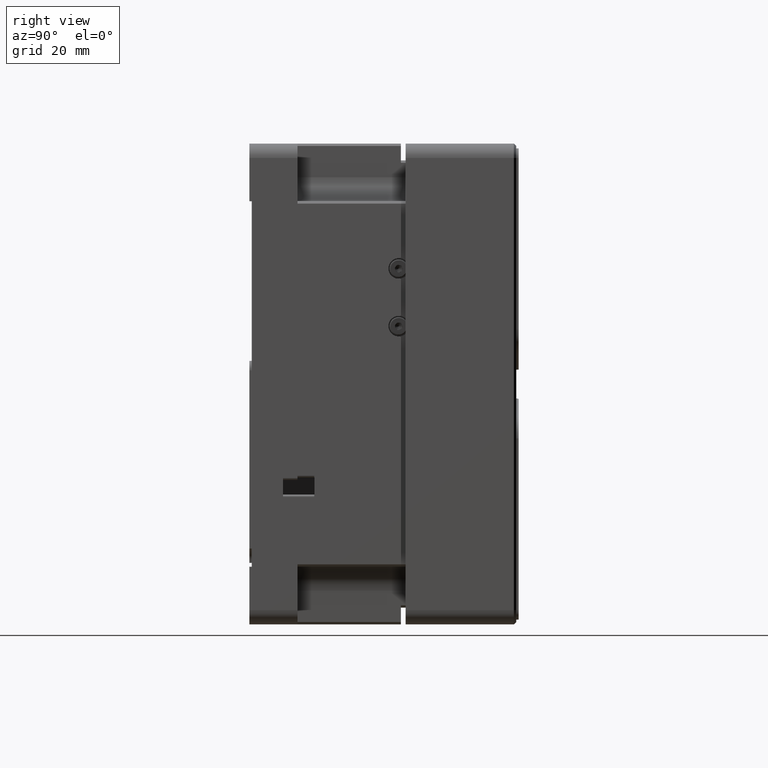
[diagram: clean part render]
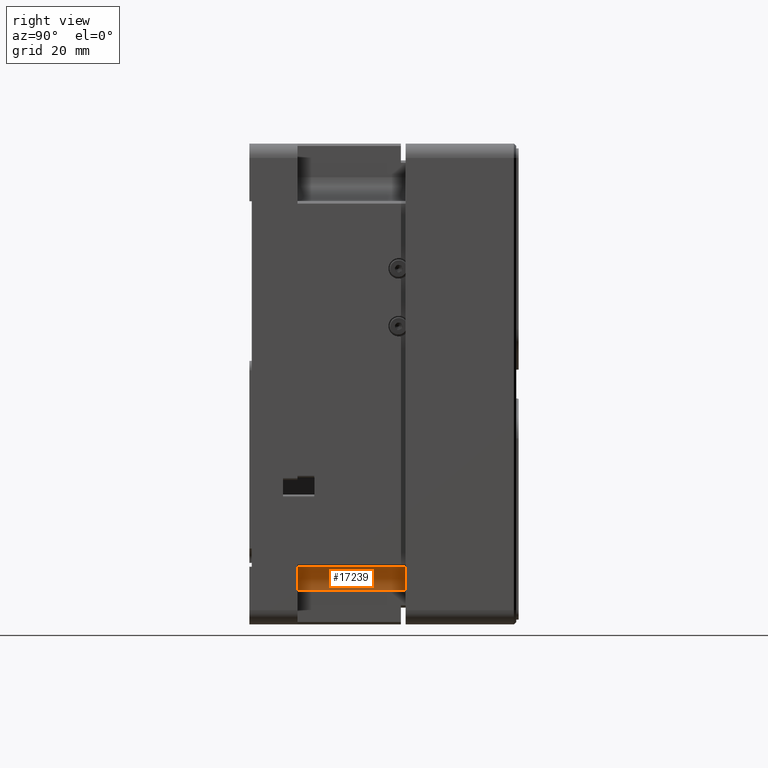
[diagram: same view with one face highlighted and labeled with its STEP entity id]
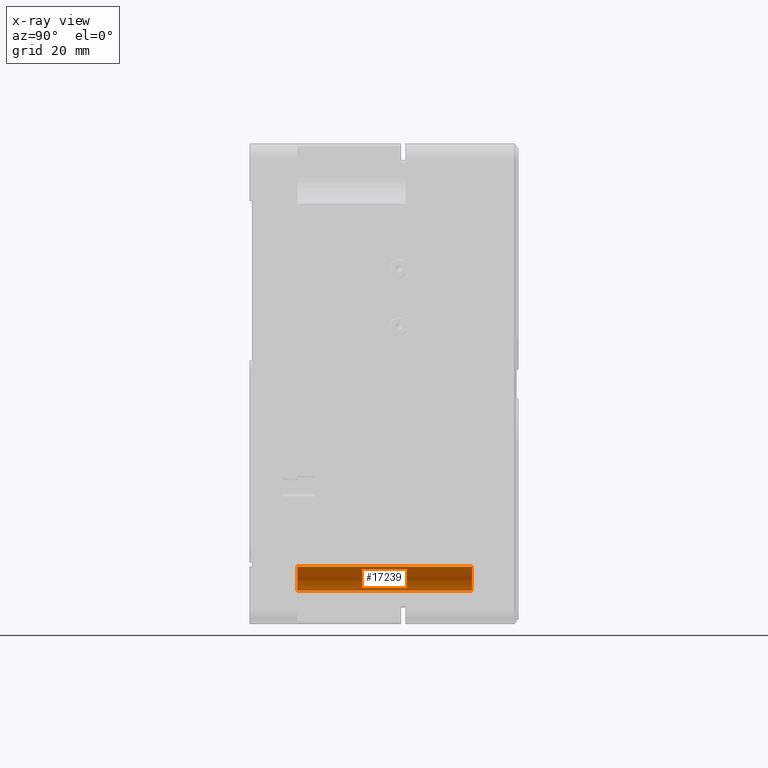
[diagram: x-ray of the same camera — body ghosted, the highlighted face saturated]
A machine part, right view. The second image highlights one B-rep face of the part: STEP entity #17239.
The next image is the same camera in x-ray: the body ghosted, the highlighted face saturated — about 0% of this face is hidden behind the body in this view.
In plain terms, the highlighted cylindrical surface (edge-blend (fillet) strip) has radius 5 mm, axis along (0, -1, 0).
Its self-contained STEP definition (entity closure, byte-faithful):
#3298 = EDGE_CURVE ( 'NONE', #46879, #20971, #17022, .T. ) ;
#3398 = DIRECTION ( 'NONE',  ( 0.000000000000000000, -1.000000000000000000, 0.000000000000000000 ) ) ;
#4237 = DIRECTION ( 'NONE',  ( 0.000000000000000000, 0.000000000000000000, -1.000000000000000000 ) ) ;
#6614 = DIRECTION ( 'NONE',  ( 0.000000000000000000, -1.000000000000000000, 0.000000000000000000 ) ) ;
#6900 = FACE_OUTER_BOUND ( 'NONE', #49751, .T. ) ;
#7433 = DIRECTION ( 'NONE',  ( 0.000000000000000000, 0.000000000000000000, -1.000000000000000000 ) ) ;
#9227 = CIRCLE ( 'NONE', #53356, 4.999999999999997335 ) ;
#9963 = ORIENTED_EDGE ( 'NONE', *, *, #52259, .T. ) ;
#10499 = ORIENTED_EDGE ( 'NONE', *, *, #3298, .F. ) ;
#10532 = DIRECTION ( 'NONE',  ( 0.000000000000000000, 1.000000000000000000, -0.000000000000000000 ) ) ;
#11301 = DIRECTION ( 'NONE',  ( -0.000000000000000000, 1.000000000000000000, -0.000000000000000000 ) ) ;
#11521 = VERTEX_POINT ( 'NONE', #31478 ) ;
#12311 = CARTESIAN_POINT ( 'NONE',  ( 43.00000000000000000, 46.30000000000001137, -43.00000000000000000 ) ) ;
#15259 = CYLINDRICAL_SURFACE ( 'NONE', #44553, 4.999999999999997335 ) ;
#16183 = CARTESIAN_POINT ( 'NONE',  ( 43.00000000000000000, 10.00000000000000178, -38.00000000000000711 ) ) ;
#17022 = LINE ( 'NONE', #16183, #54331 ) ;
#17239 = ADVANCED_FACE ( 'NONE', ( #6900 ), #15259, .F. ) ;
#20971 = VERTEX_POINT ( 'NONE', #40960 ) ;
#23488 = CARTESIAN_POINT ( 'NONE',  ( 37.99999999999999289, 10.00000000000000178, -43.00000000000000000 ) ) ;
#27800 = LINE ( 'NONE', #23488, #42038 ) ;
#28153 = EDGE_CURVE ( 'NONE', #46879, #32804, #9227, .T. ) ;
#28842 = CARTESIAN_POINT ( 'NONE',  ( 37.99999999999999289, 10.00000000000000178, -43.00000000000000000 ) ) ;
#30124 = ORIENTED_EDGE ( 'NONE', *, *, #41192, .F. ) ;
#31361 = AXIS2_PLACEMENT_3D ( 'NONE', #12311, #3398, #4237 ) ;
#31478 = CARTESIAN_POINT ( 'NONE',  ( 37.99999999999999289, 46.30000000000001137, -43.00000000000000000 ) ) ;
#32804 = VERTEX_POINT ( 'NONE', #28842 ) ;
#35147 = CARTESIAN_POINT ( 'NONE',  ( 43.00000000000000000, 10.00000000000000178, -38.00000000000000000 ) ) ;
#37758 = ORIENTED_EDGE ( 'NONE', *, *, #28153, .T. ) ;
#40960 = CARTESIAN_POINT ( 'NONE',  ( 43.00000000000000000, 46.30000000000000426, -37.99999999999999289 ) ) ;
#41192 = EDGE_CURVE ( 'NONE', #20971, #11521, #47900, .T. ) ;
#42006 = CARTESIAN_POINT ( 'NONE',  ( 43.00000000000000000, 10.00000000000000178, -43.00000000000000000 ) ) ;
#42038 = VECTOR ( 'NONE', #10532, 1000.000000000000000 ) ;
#44553 = AXIS2_PLACEMENT_3D ( 'NONE', #42006, #6614, #50073 ) ;
#46879 = VERTEX_POINT ( 'NONE', #35147 ) ;
#47900 = CIRCLE ( 'NONE', #31361, 4.999999999999997335 ) ;
#49751 = EDGE_LOOP ( 'NONE', ( #30124, #10499, #37758, #9963 ) ) ;
#50073 = DIRECTION ( 'NONE',  ( 0.000000000000000000, 0.000000000000000000, -1.000000000000000000 ) ) ;
#50606 = CARTESIAN_POINT ( 'NONE',  ( 43.00000000000000000, 10.00000000000000178, -43.00000000000000000 ) ) ;
#52259 = EDGE_CURVE ( 'NONE', #32804, #11521, #27800, .T. ) ;
#53356 = AXIS2_PLACEMENT_3D ( 'NONE', #50606, #54653, #7433 ) ;
#54331 = VECTOR ( 'NONE', #11301, 1000.000000000000000 ) ;
#54653 = DIRECTION ( 'NONE',  ( 0.000000000000000000, -1.000000000000000000, 0.000000000000000000 ) ) ;